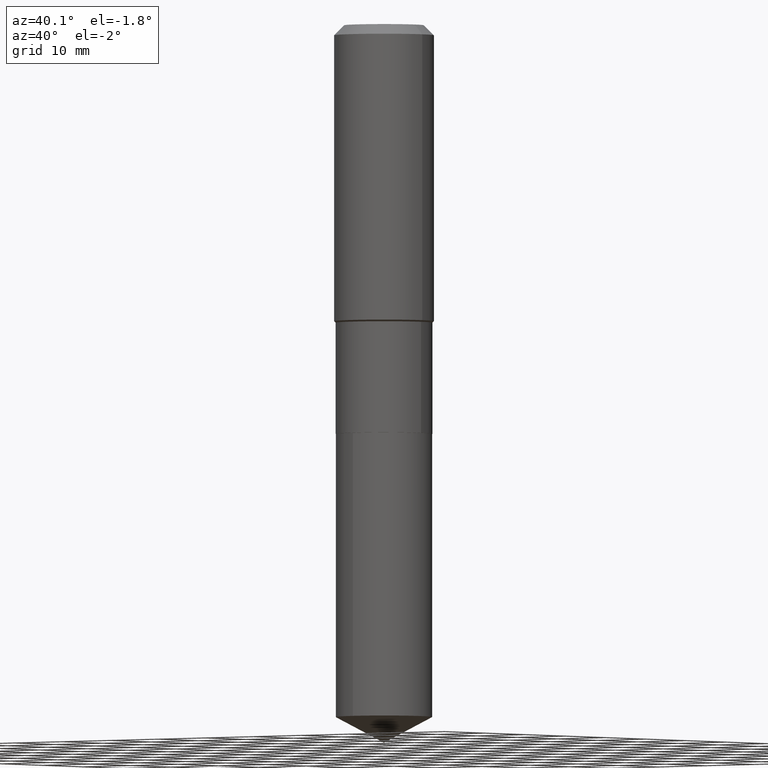
[diagram: clean part render]
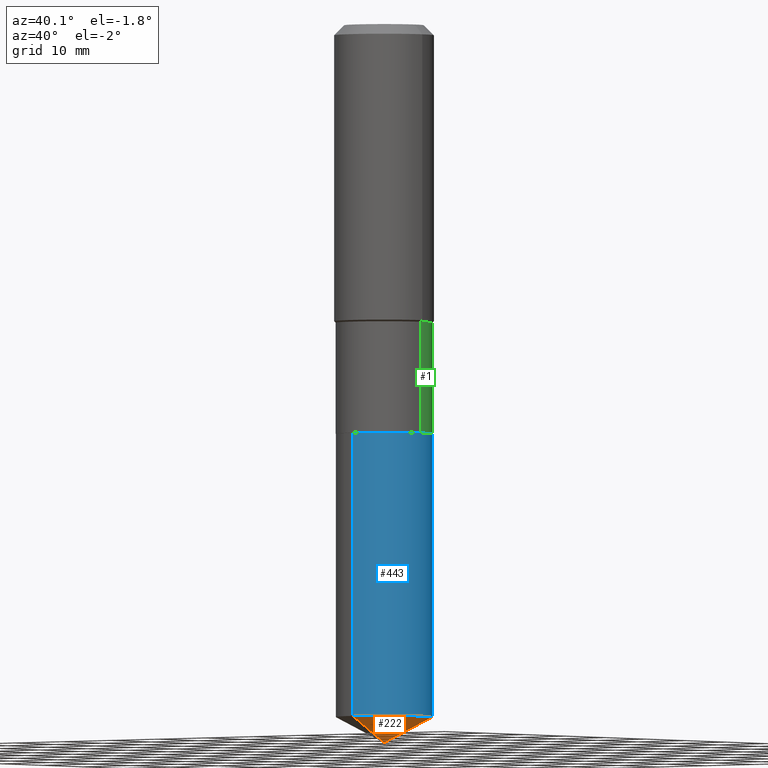
[diagram: same view with three faces highlighted in distinct colors, each labeled with its STEP entity id]
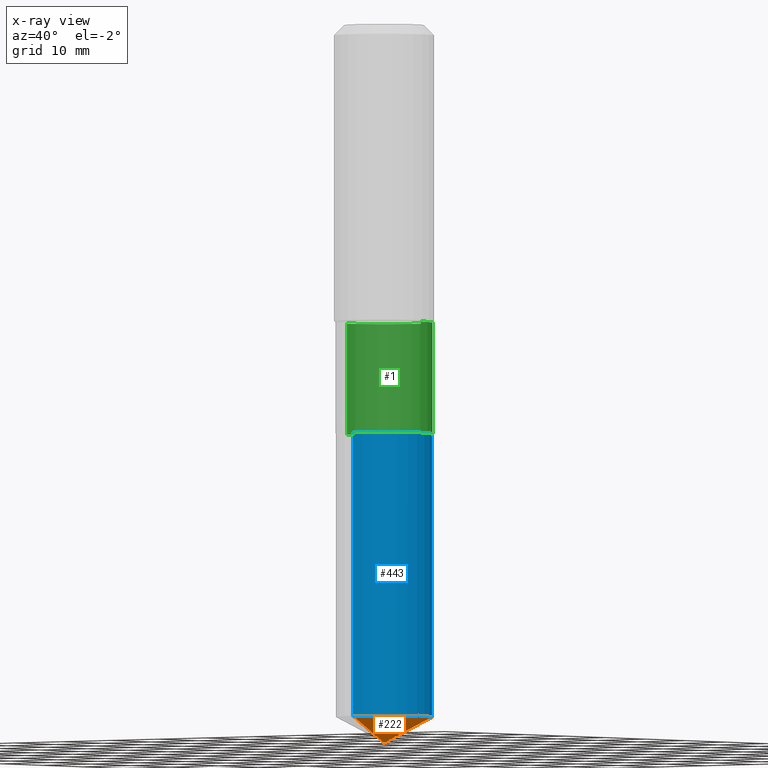
[diagram: x-ray of the same camera — body ghosted, the three highlighted faces saturated]
A machine part, auxiliary view with three faces highlighted in distinct colors.
The next image is the same camera in x-ray (body ghosted, the three faces saturated) — at least one of them is partly hidden behind the body in this view.
Their STEP definitions:

[orange] entity #222 — the highlighted conical surface has half-angle 62 deg.
#16 = DIRECTION ( 'NONE',  ( -6.982962677686265133E-15, -1.000000000000000000, 3.581577179500836259E-15 ) ) ;
#33 = FACE_OUTER_BOUND ( 'NONE', #407, .T. ) ;
#52 = LINE ( 'NONE', #268, #487 ) ;
#64 = VERTEX_POINT ( 'NONE', #147 ) ;
#76 = EDGE_CURVE ( 'NONE', #289, #298, #428, .T. ) ;
#86 = EDGE_CURVE ( 'NONE', #289, #64, #52, .T. ) ;
#100 = CARTESIAN_POINT ( 'NONE',  ( 1.107227799615215096E-28, -1.580778500539907344E-14, -4.527599999999999625 ) ) ;
#107 = CARTESIAN_POINT ( 'NONE',  ( 2.167865886804172038E-15, 0.3050999999999847723, -4.365375452400083844 ) ) ;
#126 = AXIS2_PLACEMENT_3D ( 'NONE', #387, #342, #16 ) ;
#129 = EDGE_CURVE ( 'NONE', #64, #298, #137, .T. ) ;
#137 = CIRCLE ( 'NONE', #126, 0.3051000000000000378 ) ;
#147 = CARTESIAN_POINT ( 'NONE',  ( -2.130501912961973373E-15, -0.3051000000000153034, -4.365375452400082068 ) ) ;
#154 = AXIS2_PLACEMENT_3D ( 'NONE', #282, #274, #317 ) ;
#155 = ORIENTED_EDGE ( 'NONE', *, *, #86, .F. ) ;
#222 = ADVANCED_FACE ( 'NONE', ( #33 ), #234, .T. ) ;
#234 = CONICAL_SURFACE ( 'NONE', #154, 74.04434902938345431, 1.082104136236486047 ) ;
#239 = DIRECTION ( 'NONE',  ( 6.273719981627762921E-15, 0.8829475928589293199, 0.4694715627858860874 ) ) ;
#268 = CARTESIAN_POINT ( 'NONE',  ( 1.107208068104308501E-28, -1.580806511562965912E-14, -4.527599999999999625 ) ) ;
#273 = DIRECTION ( 'NONE',  ( -6.165590087286832085E-15, -0.8829475928589261002, 0.4694715627858923601 ) ) ;
#274 = DIRECTION ( 'NONE',  ( -2.445506732258076167E-29, 3.491427026548078153E-15, 1.000000000000000000 ) ) ;
#279 = CARTESIAN_POINT ( 'NONE',  ( 1.107227628097166441E-28, -1.580778500539907660E-14, -4.527599999999999625 ) ) ;
#282 = CARTESIAN_POINT ( 'NONE',  ( -8.520761412757830605E-28, 1.216498318901973743E-13, 34.84247874015748181 ) ) ;
#289 = VERTEX_POINT ( 'NONE', #279 ) ;
#298 = VERTEX_POINT ( 'NONE', #107 ) ;
#317 = DIRECTION ( 'NONE',  ( -6.982962677686266711E-15, -1.000000000000000000, 3.541896320645564813E-15 ) ) ;
#320 = ORIENTED_EDGE ( 'NONE', *, *, #76, .T. ) ;
#342 = DIRECTION ( 'NONE',  ( -2.445506732258076167E-29, 3.491427026548078153E-15, 1.000000000000000000 ) ) ;
#367 = ORIENTED_EDGE ( 'NONE', *, *, #129, .F. ) ;
#387 = CARTESIAN_POINT ( 'NONE',  ( 1.067545725771425880E-28, -1.524152989065448378E-14, -4.365375452400082956 ) ) ;
#407 = EDGE_LOOP ( 'NONE', ( #155, #320, #367 ) ) ;
#418 = VECTOR ( 'NONE', #239, 39.37007874015748143 ) ;
#428 = LINE ( 'NONE', #100, #418 ) ;
#487 = VECTOR ( 'NONE', #273, 39.37007874015748143 ) ;

[blue] entity #443 — the highlighted cylindrical surface (partial cylindrical patch) has radius 7.7495 mm, axis along (-0, 0, 1).
#16 = DIRECTION ( 'NONE',  ( -6.982962677686265133E-15, -1.000000000000000000, 3.581577179500836259E-15 ) ) ;
#29 = DIRECTION ( 'NONE',  ( -2.445506732258076167E-29, 3.491427026548078153E-15, 1.000000000000000000 ) ) ;
#31 = ORIENTED_EDGE ( 'NONE', *, *, #129, .T. ) ;
#39 = DIRECTION ( 'NONE',  ( -2.445506732258076167E-29, 3.491427026548078153E-15, 1.000000000000000000 ) ) ;
#42 = AXIS2_PLACEMENT_3D ( 'NONE', #260, #39, #288 ) ;
#46 = DIRECTION ( 'NONE',  ( -2.445506732258076167E-29, 3.491427026548078153E-15, 1.000000000000000000 ) ) ;
#51 = ORIENTED_EDGE ( 'NONE', *, *, #420, .F. ) ;
#59 = CARTESIAN_POINT ( 'NONE',  ( -2.130501912962016366E-15, -0.3051000000000089751, -2.578699999999998216 ) ) ;
#64 = VERTEX_POINT ( 'NONE', #147 ) ;
#75 = DIRECTION ( 'NONE',  ( -2.445506732258076167E-29, 3.491427026548078153E-15, 1.000000000000000000 ) ) ;
#83 = DIRECTION ( 'NONE',  ( -6.982962677686265133E-15, -1.000000000000000000, 3.581577179500837048E-15 ) ) ;
#102 = LINE ( 'NONE', #434, #266 ) ;
#107 = CARTESIAN_POINT ( 'NONE',  ( 2.167865886804172038E-15, 0.3050999999999847723, -4.365375452400083844 ) ) ;
#115 = CARTESIAN_POINT ( 'NONE',  ( 2.167865886804128256E-15, 0.3050999999999909895, -2.578700000000000436 ) ) ;
#122 = LINE ( 'NONE', #115, #258 ) ;
#126 = AXIS2_PLACEMENT_3D ( 'NONE', #387, #342, #16 ) ;
#129 = EDGE_CURVE ( 'NONE', #64, #298, #137, .T. ) ;
#137 = CIRCLE ( 'NONE', #126, 0.3051000000000000378 ) ;
#147 = CARTESIAN_POINT ( 'NONE',  ( -2.130501912961973373E-15, -0.3051000000000153034, -4.365375452400082068 ) ) ;
#174 = CARTESIAN_POINT ( 'NONE',  ( 2.167865886804172432E-15, 0.3050999999999909895, -2.578700000000000436 ) ) ;
#232 = VERTEX_POINT ( 'NONE', #59 ) ;
#258 = VECTOR ( 'NONE', #75, 39.37007874015748143 ) ;
#260 = CARTESIAN_POINT ( 'NONE',  ( 6.306130410509609656E-29, -9.003482928474816704E-15, -2.578699999999999548 ) ) ;
#266 = VECTOR ( 'NONE', #29, 39.37007874015748143 ) ;
#288 = DIRECTION ( 'NONE',  ( -6.982962677686265133E-15, -1.000000000000000000, 3.581577179500837048E-15 ) ) ;
#298 = VERTEX_POINT ( 'NONE', #107 ) ;
#326 = EDGE_CURVE ( 'NONE', #64, #232, #102, .T. ) ;
#332 = FACE_OUTER_BOUND ( 'NONE', #473, .T. ) ;
#342 = DIRECTION ( 'NONE',  ( -2.445506732258076167E-29, 3.491427026548078153E-15, 1.000000000000000000 ) ) ;
#347 = CIRCLE ( 'NONE', #467, 0.3050999999999999823 ) ;
#358 = ORIENTED_EDGE ( 'NONE', *, *, #471, .T. ) ;
#373 = CYLINDRICAL_SURFACE ( 'NONE', #42, 0.3050999999999999823 ) ;
#387 = CARTESIAN_POINT ( 'NONE',  ( 1.067545725771425880E-28, -1.524152989065448378E-14, -4.365375452400082956 ) ) ;
#395 = VERTEX_POINT ( 'NONE', #174 ) ;
#404 = CARTESIAN_POINT ( 'NONE',  ( 6.306130410509609656E-29, -9.003482928474816704E-15, -2.578699999999999548 ) ) ;
#420 = EDGE_CURVE ( 'NONE', #232, #395, #347, .T. ) ;
#434 = CARTESIAN_POINT ( 'NONE',  ( -2.130501912962016366E-15, -0.3051000000000089751, -2.578699999999998216 ) ) ;
#443 = ADVANCED_FACE ( 'NONE', ( #332 ), #373, .T. ) ;
#454 = ORIENTED_EDGE ( 'NONE', *, *, #326, .F. ) ;
#467 = AXIS2_PLACEMENT_3D ( 'NONE', #404, #46, #83 ) ;
#471 = EDGE_CURVE ( 'NONE', #298, #395, #122, .T. ) ;
#473 = EDGE_LOOP ( 'NONE', ( #31, #358, #51, #454 ) ) ;

[green] entity #1 — the highlighted cylindrical surface (partial cylindrical patch) has radius 7.7495 mm, axis along (-0, 0, 1).
#1 = ADVANCED_FACE ( 'NONE', ( #322 ), #136, .T. ) ;
#30 = CARTESIAN_POINT ( 'NONE',  ( -0.3050999999999999268, 2.167865886804065147E-15, -1.500767096036771338E-29 ) ) ;
#32 = EDGE_CURVE ( 'NONE', #106, #141, #478, .T. ) ;
#36 = CARTESIAN_POINT ( 'NONE',  ( 6.304907676106516855E-29, -9.001737187805394412E-15, -2.578199999999999381 ) ) ;
#58 = AXIS2_PLACEMENT_3D ( 'NONE', #250, #402, #73 ) ;
#72 = ORIENTED_EDGE ( 'NONE', *, *, #32, .T. ) ;
#73 = DIRECTION ( 'NONE',  ( 1.000000000000000000, -6.982962677686266711E-15, 0.000000000000000000 ) ) ;
#90 = CARTESIAN_POINT ( 'NONE',  ( -0.3050999999999999268, -5.609757943602924419E-15, -1.876999999999999780 ) ) ;
#101 = AXIS2_PLACEMENT_3D ( 'NONE', #36, #399, #172 ) ;
#106 = VERTEX_POINT ( 'NONE', #300 ) ;
#123 = ORIENTED_EDGE ( 'NONE', *, *, #344, .F. ) ;
#127 = ORIENTED_EDGE ( 'NONE', *, *, #461, .F. ) ;
#136 = CYLINDRICAL_SURFACE ( 'NONE', #416, 0.3050999999999999268 ) ;
#141 = VERTEX_POINT ( 'NONE', #90 ) ;
#153 = CARTESIAN_POINT ( 'NONE',  ( 0.3050999999999999268, -2.130501912962079080E-15, 1.487721534295339594E-29 ) ) ;
#156 = LINE ( 'NONE', #153, #400 ) ;
#172 = DIRECTION ( 'NONE',  ( 1.000000000000000000, -6.982962677686264344E-15, 0.000000000000000000 ) ) ;
#179 = CIRCLE ( 'NONE', #58, 0.3050999999999999268 ) ;
#193 = ORIENTED_EDGE ( 'NONE', *, *, #262, .T. ) ;
#247 = DIRECTION ( 'NONE',  ( -2.445468806185136877E-29, 3.491481338843145188E-15, 1.000000000000000000 ) ) ;
#250 = CARTESIAN_POINT ( 'NONE',  ( 4.590144949209500643E-29, -6.553510473008583144E-15, -1.876999999999999780 ) ) ;
#262 = EDGE_CURVE ( 'NONE', #377, #106, #306, .T. ) ;
#300 = CARTESIAN_POINT ( 'NONE',  ( -0.3050999999999999823, -5.609757943602922842E-15, -2.578199999999999381 ) ) ;
#304 = VECTOR ( 'NONE', #247, 39.37007874015748143 ) ;
#306 = CIRCLE ( 'NONE', #101, 0.3050999999999999268 ) ;
#309 = CARTESIAN_POINT ( 'NONE',  ( 0.3050999999999999268, -8.684012385970661829E-15, -1.876999999999999780 ) ) ;
#319 = CARTESIAN_POINT ( 'NONE',  ( 0.000000000000000000, 0.000000000000000000, 0.000000000000000000 ) ) ;
#322 = FACE_OUTER_BOUND ( 'NONE', #479, .T. ) ;
#344 = EDGE_CURVE ( 'NONE', #371, #141, #179, .T. ) ;
#371 = VERTEX_POINT ( 'NONE', #309 ) ;
#377 = VERTEX_POINT ( 'NONE', #390 ) ;
#390 = CARTESIAN_POINT ( 'NONE',  ( 0.3050999999999999268, -1.113223910076747310E-14, -2.578199999999999381 ) ) ;
#399 = DIRECTION ( 'NONE',  ( -2.445468806185136597E-29, 3.491481338843145583E-15, 1.000000000000000000 ) ) ;
#400 = VECTOR ( 'NONE', #453, 39.37007874015748143 ) ;
#402 = DIRECTION ( 'NONE',  ( -2.445468806185136597E-29, 3.491481338843145583E-15, 1.000000000000000000 ) ) ;
#416 = AXIS2_PLACEMENT_3D ( 'NONE', #319, #437, #481 ) ;
#437 = DIRECTION ( 'NONE',  ( -2.445468806185136597E-29, 3.491481338843145583E-15, 1.000000000000000000 ) ) ;
#453 = DIRECTION ( 'NONE',  ( -2.445468806185136877E-29, 3.491481338843145188E-15, 1.000000000000000000 ) ) ;
#461 = EDGE_CURVE ( 'NONE', #377, #371, #156, .T. ) ;
#478 = LINE ( 'NONE', #30, #304 ) ;
#479 = EDGE_LOOP ( 'NONE', ( #193, #72, #123, #127 ) ) ;
#481 = DIRECTION ( 'NONE',  ( 1.000000000000000000, -6.982962677686265133E-15, 4.876176775795935793E-29 ) ) ;